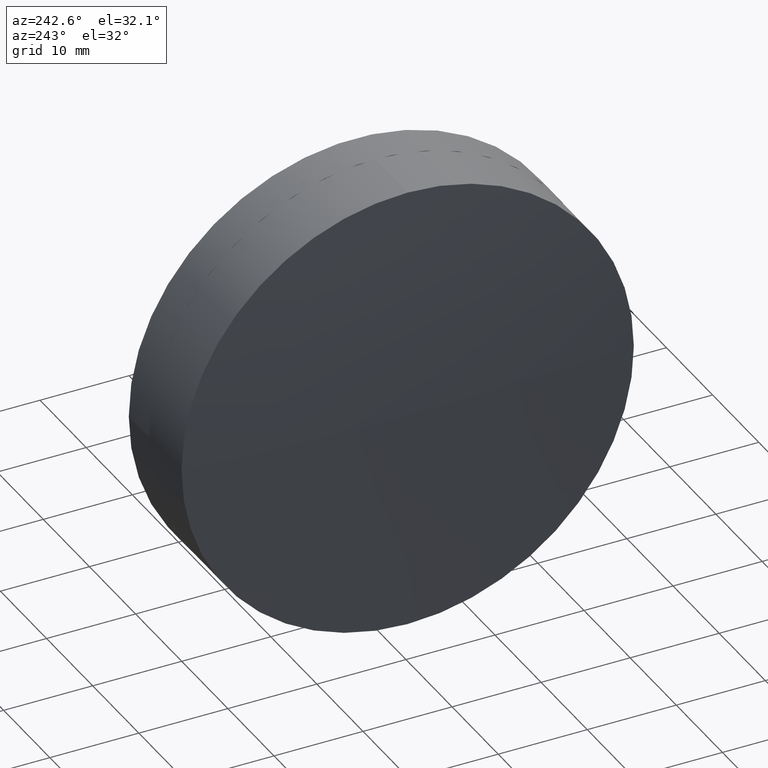
[diagram: clean part render]
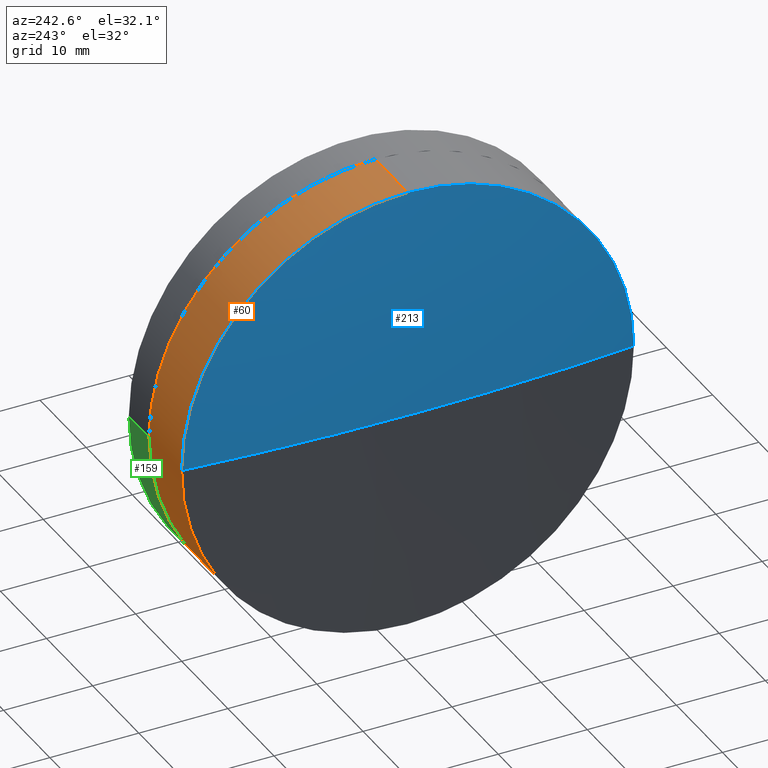
[diagram: same view with three faces highlighted in distinct colors, each labeled with its STEP entity id]
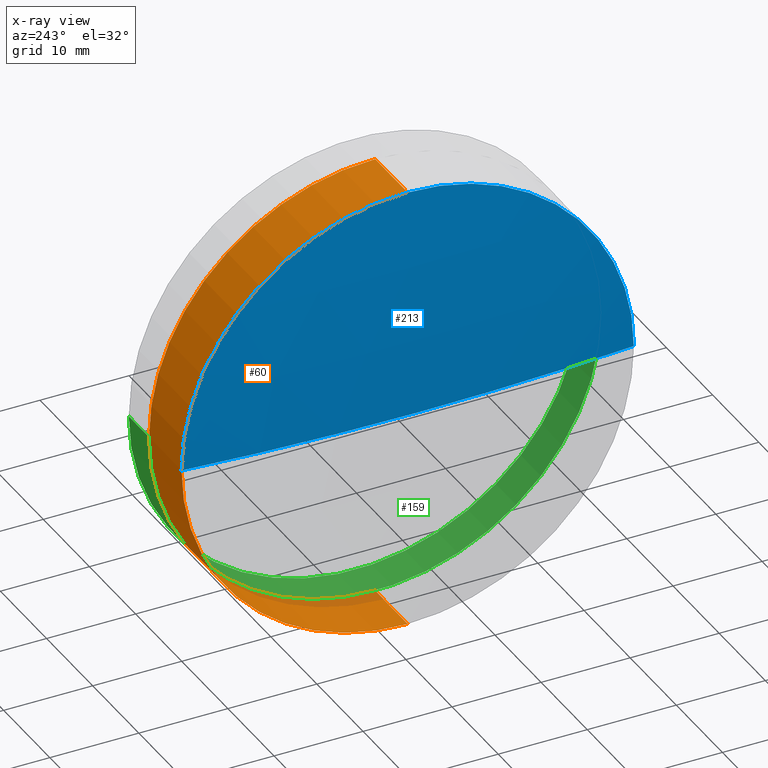
[diagram: x-ray of the same camera — body ghosted, the three highlighted faces saturated]
A machine part, auxiliary view with three faces highlighted in distinct colors.
The next image is the same camera in x-ray (body ghosted, the three faces saturated) — at least one of them is partly hidden behind the body in this view.
Their STEP definitions:

[orange] entity #60 — the highlighted cylindrical surface (partial cylindrical patch) has radius 25.4 mm, axis along (-1, -0, -0).
#9 = DIRECTION ( 'NONE',  ( 0.000000000000000000, 0.000000000000000000, 1.000000000000000000 ) ) ;
#10 = DIRECTION ( 'NONE',  ( -1.000000000000000000, -0.000000000000000000, -0.000000000000000000 ) ) ;
#14 = VERTEX_POINT ( 'NONE', #116 ) ;
#17 = EDGE_CURVE ( 'NONE', #251, #59, #151, .T. ) ;
#20 = CIRCLE ( 'NONE', #57, 25.39999999999999858 ) ;
#24 = CARTESIAN_POINT ( 'NONE',  ( -98.67517410788653365, 17.58894564919701153, 25.39999999999999858 ) ) ;
#27 = VERTEX_POINT ( 'NONE', #24 ) ;
#28 = EDGE_CURVE ( 'NONE', #14, #132, #319, .T. ) ;
#35 = CARTESIAN_POINT ( 'NONE',  ( -105.7255114087630972, 17.58894564919701509, -25.39999999999999858 ) ) ;
#36 = AXIS2_PLACEMENT_3D ( 'NONE', #145, #203, #278 ) ;
#49 = VECTOR ( 'NONE', #119, 1000.000000000000000 ) ;
#57 = AXIS2_PLACEMENT_3D ( 'NONE', #139, #375, #345 ) ;
#59 = VERTEX_POINT ( 'NONE', #147 ) ;
#60 = ADVANCED_FACE ( 'NONE', ( #262 ), #317, .T. ) ;
#105 = ORIENTED_EDGE ( 'NONE', *, *, #28, .T. ) ;
#110 = DIRECTION ( 'NONE',  ( 0.000000000000000000, 0.000000000000000000, 1.000000000000000000 ) ) ;
#114 = VERTEX_POINT ( 'NONE', #35 ) ;
#115 = DIRECTION ( 'NONE',  ( -1.000000000000000000, -0.000000000000000000, -0.000000000000000000 ) ) ;
#116 = CARTESIAN_POINT ( 'NONE',  ( -98.67517410788651944, 42.98894564919707051, 0.000000000000000000 ) ) ;
#119 = DIRECTION ( 'NONE',  ( -1.000000000000000000, -0.000000000000000000, -0.000000000000000000 ) ) ;
#122 = VECTOR ( 'NONE', #115, 1000.000000000000000 ) ;
#124 = EDGE_CURVE ( 'NONE', #132, #114, #351, .T. ) ;
#125 = CARTESIAN_POINT ( 'NONE',  ( -105.7255114087630972, 17.58894564919701153, 25.39999999999999858 ) ) ;
#132 = VERTEX_POINT ( 'NONE', #381 ) ;
#134 = CARTESIAN_POINT ( 'NONE',  ( -98.67517410788653365, 17.58894564919701153, 0.000000000000000000 ) ) ;
#136 = CIRCLE ( 'NONE', #352, 25.39999999999999858 ) ;
#139 = CARTESIAN_POINT ( 'NONE',  ( -105.7255114087630972, 17.58894564919701153, 0.000000000000000000 ) ) ;
#140 = ORIENTED_EDGE ( 'NONE', *, *, #199, .F. ) ;
#142 = ORIENTED_EDGE ( 'NONE', *, *, #150, .F. ) ;
#143 = DIRECTION ( 'NONE',  ( -1.000000000000000000, -0.000000000000000000, -0.000000000000000000 ) ) ;
#145 = CARTESIAN_POINT ( 'NONE',  ( -105.7255114087630972, 17.58894564919701153, 0.000000000000000000 ) ) ;
#147 = CARTESIAN_POINT ( 'NONE',  ( -105.7255114087630972, 42.98894564919707051, 0.000000000000000000 ) ) ;
#150 = EDGE_CURVE ( 'NONE', #27, #251, #253, .T. ) ;
#151 = CIRCLE ( 'NONE', #36, 25.39999999999999858 ) ;
#165 = ORIENTED_EDGE ( 'NONE', *, *, #124, .T. ) ;
#177 = CARTESIAN_POINT ( 'NONE',  ( -106.8949775309884274, 17.58894564919701153, 25.39999999999999858 ) ) ;
#199 = EDGE_CURVE ( 'NONE', #59, #114, #20, .T. ) ;
#203 = DIRECTION ( 'NONE',  ( -1.000000000000000000, -0.000000000000000000, -0.000000000000000000 ) ) ;
#221 = ORIENTED_EDGE ( 'NONE', *, *, #17, .F. ) ;
#227 = DIRECTION ( 'NONE',  ( 0.000000000000000000, 0.000000000000000000, 1.000000000000000000 ) ) ;
#231 = CARTESIAN_POINT ( 'NONE',  ( -106.8949775309884274, 17.58894564919701153, 0.000000000000000000 ) ) ;
#251 = VERTEX_POINT ( 'NONE', #125 ) ;
#253 = LINE ( 'NONE', #177, #122 ) ;
#254 = EDGE_LOOP ( 'NONE', ( #105, #165, #140, #221, #142, #338 ) ) ;
#262 = FACE_OUTER_BOUND ( 'NONE', #254, .T. ) ;
#275 = AXIS2_PLACEMENT_3D ( 'NONE', #134, #372, #110 ) ;
#278 = DIRECTION ( 'NONE',  ( 0.000000000000000000, 0.000000000000000000, 1.000000000000000000 ) ) ;
#290 = CARTESIAN_POINT ( 'NONE',  ( -106.8949775309884274, 17.58894564919701509, -25.39999999999999858 ) ) ;
#317 = CYLINDRICAL_SURFACE ( 'NONE', #326, 25.39999999999999858 ) ;
#319 = CIRCLE ( 'NONE', #275, 25.39999999999999858 ) ;
#326 = AXIS2_PLACEMENT_3D ( 'NONE', #231, #143, #227 ) ;
#329 = CARTESIAN_POINT ( 'NONE',  ( -98.67517410788653365, 17.58894564919701153, 0.000000000000000000 ) ) ;
#338 = ORIENTED_EDGE ( 'NONE', *, *, #354, .T. ) ;
#345 = DIRECTION ( 'NONE',  ( 0.000000000000000000, 0.000000000000000000, 1.000000000000000000 ) ) ;
#351 = LINE ( 'NONE', #290, #49 ) ;
#352 = AXIS2_PLACEMENT_3D ( 'NONE', #329, #10, #9 ) ;
#354 = EDGE_CURVE ( 'NONE', #27, #14, #136, .T. ) ;
#372 = DIRECTION ( 'NONE',  ( -1.000000000000000000, -0.000000000000000000, -0.000000000000000000 ) ) ;
#375 = DIRECTION ( 'NONE',  ( -1.000000000000000000, -0.000000000000000000, -0.000000000000000000 ) ) ;
#381 = CARTESIAN_POINT ( 'NONE',  ( -98.67517410788653365, 17.58894564919701509, -25.39999999999999858 ) ) ;

[blue] entity #213 — the highlighted spherical surface has radius 276.42 mm.
#11 = CIRCLE ( 'NONE', #65, 276.4200000000000159 ) ;
#17 = EDGE_CURVE ( 'NONE', #251, #59, #151, .T. ) ;
#36 = AXIS2_PLACEMENT_3D ( 'NONE', #145, #203, #278 ) ;
#41 = AXIS2_PLACEMENT_3D ( 'NONE', #209, #95, #357 ) ;
#53 = EDGE_LOOP ( 'NONE', ( #369, #350, #107, #170 ) ) ;
#59 = VERTEX_POINT ( 'NONE', #147 ) ;
#65 = AXIS2_PLACEMENT_3D ( 'NONE', #268, #360, #302 ) ;
#73 = DIRECTION ( 'NONE',  ( 0.000000000000000000, 1.224646799147353207E-16, -1.000000000000000000 ) ) ;
#84 = FACE_OUTER_BOUND ( 'NONE', #53, .T. ) ;
#95 = DIRECTION ( 'NONE',  ( -0.000000000000000000, 0.000000000000000000, -1.000000000000000000 ) ) ;
#98 = CIRCLE ( 'NONE', #155, 276.4200000000000159 ) ;
#107 = ORIENTED_EDGE ( 'NONE', *, *, #17, .T. ) ;
#112 = VERTEX_POINT ( 'NONE', #315 ) ;
#125 = CARTESIAN_POINT ( 'NONE',  ( -105.7255114087630972, 17.58894564919701153, 25.39999999999999858 ) ) ;
#145 = CARTESIAN_POINT ( 'NONE',  ( -105.7255114087630972, 17.58894564919701153, 0.000000000000000000 ) ) ;
#147 = CARTESIAN_POINT ( 'NONE',  ( -105.7255114087630972, 42.98894564919707051, 0.000000000000000000 ) ) ;
#149 = DIRECTION ( 'NONE',  ( -1.000000000000000000, -0.000000000000000000, -0.000000000000000000 ) ) ;
#151 = CIRCLE ( 'NONE', #36, 25.39999999999999858 ) ;
#155 = AXIS2_PLACEMENT_3D ( 'NONE', #179, #73, #330 ) ;
#170 = ORIENTED_EDGE ( 'NONE', *, *, #324, .T. ) ;
#179 = CARTESIAN_POINT ( 'NONE',  ( 169.5250224690116170, 17.58894564919701153, 0.000000000000000000 ) ) ;
#186 = EDGE_CURVE ( 'NONE', #112, #251, #215, .T. ) ;
#203 = DIRECTION ( 'NONE',  ( -1.000000000000000000, -0.000000000000000000, -0.000000000000000000 ) ) ;
#209 = CARTESIAN_POINT ( 'NONE',  ( 169.5250224690116170, 17.58894564919701153, 0.000000000000000000 ) ) ;
#213 = ADVANCED_FACE ( 'NONE', ( #84 ), #235, .T. ) ;
#215 = CIRCLE ( 'NONE', #306, 25.39999999999999858 ) ;
#217 = VERTEX_POINT ( 'NONE', #325 ) ;
#235 = SPHERICAL_SURFACE ( 'NONE', #41, 276.4200000000000159 ) ;
#251 = VERTEX_POINT ( 'NONE', #125 ) ;
#252 = EDGE_CURVE ( 'NONE', #112, #217, #98, .T. ) ;
#263 = DIRECTION ( 'NONE',  ( 0.000000000000000000, 0.000000000000000000, 1.000000000000000000 ) ) ;
#268 = CARTESIAN_POINT ( 'NONE',  ( 169.5250224690116170, 17.58894564919701153, 0.000000000000000000 ) ) ;
#278 = DIRECTION ( 'NONE',  ( 0.000000000000000000, 0.000000000000000000, 1.000000000000000000 ) ) ;
#302 = DIRECTION ( 'NONE',  ( 1.000000000000000000, 0.000000000000000000, 0.000000000000000000 ) ) ;
#306 = AXIS2_PLACEMENT_3D ( 'NONE', #323, #149, #263 ) ;
#315 = CARTESIAN_POINT ( 'NONE',  ( -105.7255114087630972, -7.811054350803045665, -3.110602869834283965E-15 ) ) ;
#323 = CARTESIAN_POINT ( 'NONE',  ( -105.7255114087630972, 17.58894564919701153, 0.000000000000000000 ) ) ;
#324 = EDGE_CURVE ( 'NONE', #59, #217, #11, .T. ) ;
#325 = CARTESIAN_POINT ( 'NONE',  ( -106.8949775309883989, 17.58894564919702930, 0.000000000000000000 ) ) ;
#330 = DIRECTION ( 'NONE',  ( 0.000000000000000000, 1.000000000000000000, 1.224646799147353207E-16 ) ) ;
#350 = ORIENTED_EDGE ( 'NONE', *, *, #186, .T. ) ;
#357 = DIRECTION ( 'NONE',  ( 0.000000000000000000, 1.000000000000000000, 0.000000000000000000 ) ) ;
#360 = DIRECTION ( 'NONE',  ( -0.000000000000000000, 0.000000000000000000, 1.000000000000000000 ) ) ;
#369 = ORIENTED_EDGE ( 'NONE', *, *, #252, .F. ) ;

[green] entity #159 — the highlighted cylindrical surface (partial cylindrical patch) has radius 25.4 mm, axis along (1, 0, -0).
#3 = CARTESIAN_POINT ( 'NONE',  ( -98.67517410788651944, -7.811054350804359281, 3.110602869834457120E-15 ) ) ;
#4 = LINE ( 'NONE', #39, #311 ) ;
#6 = CIRCLE ( 'NONE', #258, 25.39999999999999858 ) ;
#30 = DIRECTION ( 'NONE',  ( 1.000000000000000000, 1.224646799147352961E-16, -0.000000000000000000 ) ) ;
#31 = VERTEX_POINT ( 'NONE', #343 ) ;
#32 = EDGE_CURVE ( 'NONE', #31, #257, #4, .T. ) ;
#33 = CARTESIAN_POINT ( 'NONE',  ( -98.67517410788653365, 17.58894564919701153, 0.000000000000000000 ) ) ;
#38 = CARTESIAN_POINT ( 'NONE',  ( -94.28535173173268902, 17.58894564919701153, 0.000000000000000000 ) ) ;
#39 = CARTESIAN_POINT ( 'NONE',  ( -94.28535173173268902, 42.98894564919700656, 0.000000000000000000 ) ) ;
#44 = CARTESIAN_POINT ( 'NONE',  ( -94.28535173173268902, 42.98894564919700656, 0.000000000000000000 ) ) ;
#45 = VECTOR ( 'NONE', #30, 1000.000000000000000 ) ;
#47 = VERTEX_POINT ( 'NONE', #291 ) ;
#89 = ORIENTED_EDGE ( 'NONE', *, *, #196, .F. ) ;
#120 = DIRECTION ( 'NONE',  ( 1.000000000000000000, 1.224646799147352961E-16, -0.000000000000000000 ) ) ;
#126 = AXIS2_PLACEMENT_3D ( 'NONE', #38, #120, #261 ) ;
#129 = EDGE_CURVE ( 'NONE', #168, #31, #189, .T. ) ;
#131 = EDGE_CURVE ( 'NONE', #47, #257, #6, .T. ) ;
#159 = ADVANCED_FACE ( 'NONE', ( #292 ), #313, .T. ) ;
#167 = LINE ( 'NONE', #283, #45 ) ;
#168 = VERTEX_POINT ( 'NONE', #3 ) ;
#171 = DIRECTION ( 'NONE',  ( 0.000000000000000000, 1.000000000000000000, 0.000000000000000000 ) ) ;
#173 = AXIS2_PLACEMENT_3D ( 'NONE', #33, #202, #171 ) ;
#176 = DIRECTION ( 'NONE',  ( 1.000000000000000000, 1.224646799147352961E-16, -0.000000000000000000 ) ) ;
#189 = CIRCLE ( 'NONE', #173, 25.39999999999999858 ) ;
#196 = EDGE_CURVE ( 'NONE', #168, #47, #167, .T. ) ;
#197 = DIRECTION ( 'NONE',  ( 1.000000000000000000, 1.224646799147352961E-16, -0.000000000000000000 ) ) ;
#202 = DIRECTION ( 'NONE',  ( 1.000000000000000000, 1.224646799147352961E-16, -0.000000000000000000 ) ) ;
#233 = DIRECTION ( 'NONE',  ( 0.000000000000000000, 1.000000000000000000, 0.000000000000000000 ) ) ;
#245 = EDGE_LOOP ( 'NONE', ( #89, #314, #380, #285 ) ) ;
#257 = VERTEX_POINT ( 'NONE', #44 ) ;
#258 = AXIS2_PLACEMENT_3D ( 'NONE', #286, #197, #233 ) ;
#261 = DIRECTION ( 'NONE',  ( 0.000000000000000000, 1.000000000000000000, 0.000000000000000000 ) ) ;
#283 = CARTESIAN_POINT ( 'NONE',  ( -94.28535173173268902, -7.811054350802988822, 3.110602869834276865E-15 ) ) ;
#285 = ORIENTED_EDGE ( 'NONE', *, *, #131, .F. ) ;
#286 = CARTESIAN_POINT ( 'NONE',  ( -94.28535173173268902, 17.58894564919701153, 0.000000000000000000 ) ) ;
#291 = CARTESIAN_POINT ( 'NONE',  ( -94.28535173173268902, -7.811054350802988822, 3.110602869834276865E-15 ) ) ;
#292 = FACE_OUTER_BOUND ( 'NONE', #245, .T. ) ;
#311 = VECTOR ( 'NONE', #176, 1000.000000000000000 ) ;
#313 = CYLINDRICAL_SURFACE ( 'NONE', #126, 25.39999999999999858 ) ;
#314 = ORIENTED_EDGE ( 'NONE', *, *, #129, .T. ) ;
#343 = CARTESIAN_POINT ( 'NONE',  ( -98.67517410788651944, 42.98894564919847738, 0.000000000000000000 ) ) ;
#380 = ORIENTED_EDGE ( 'NONE', *, *, #32, .T. ) ;